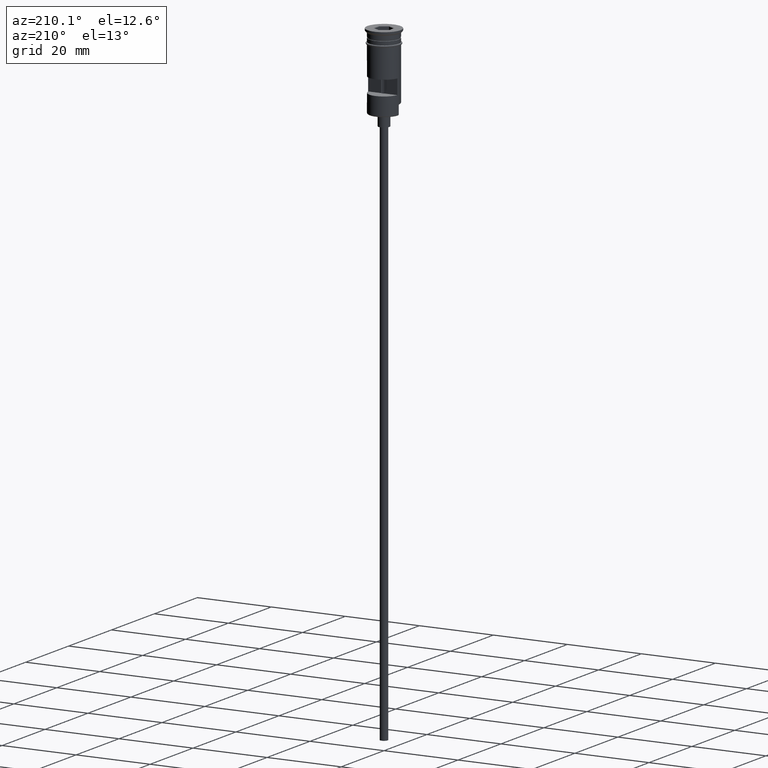
[diagram: clean part render]
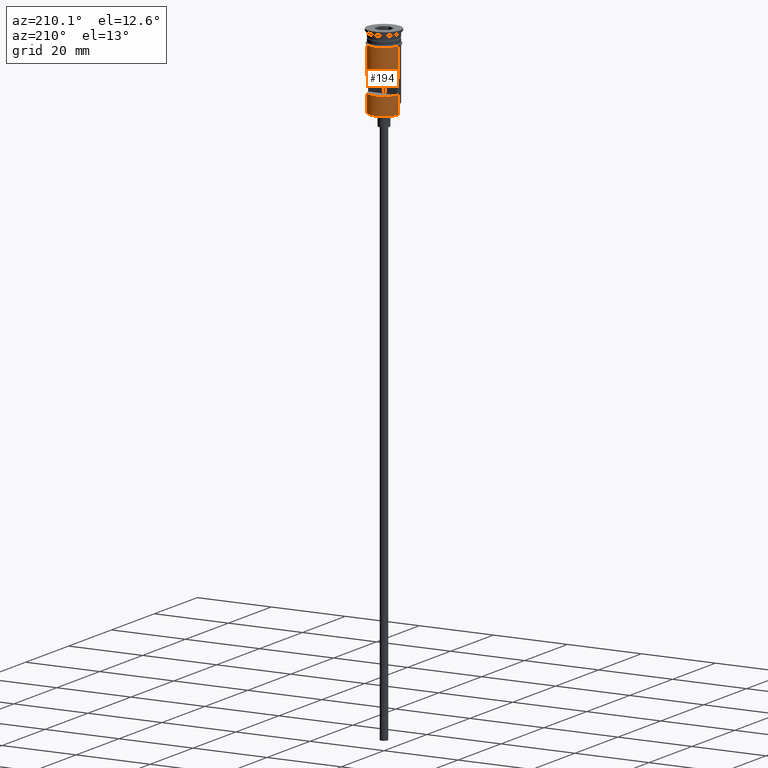
[diagram: same view with one face highlighted and labeled with its STEP entity id]
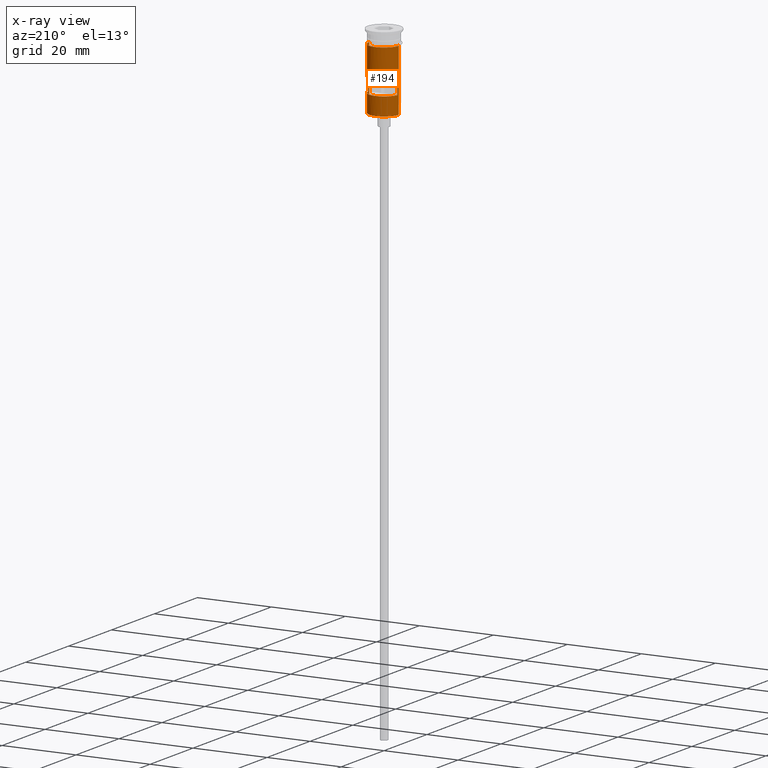
[diagram: x-ray of the same camera — body ghosted, the highlighted face saturated]
A machine part, auxiliary view. The second image highlights one B-rep face of the part: STEP entity #194.
The next image is the same camera in x-ray: the body ghosted, the highlighted face saturated — about 0% of this face is hidden behind the body in this view.
In plain terms, the highlighted cylindrical surface (edge-blend (fillet) strip) has radius 4 mm, axis along (-0, -0, 1).
Its self-contained STEP definition (entity closure, byte-faithful):
#26 = VECTOR ( 'NONE', #1571, 1000.000000000000000 ) ;
#110 = ORIENTED_EDGE ( 'NONE', *, *, #166, .T. ) ;
#134 = VERTEX_POINT ( 'NONE', #1245 ) ;
#153 = VERTEX_POINT ( 'NONE', #1065 ) ;
#160 = AXIS2_PLACEMENT_3D ( 'NONE', #1293, #1274, #1149 ) ;
#166 = EDGE_CURVE ( 'NONE', #1582, #153, #828, .T. ) ;
#184 = VECTOR ( 'NONE', #851, 1000.000000000000000 ) ;
#194 = ADVANCED_FACE ( 'NONE', ( #1537, #1297 ), #985, .T. ) ;
#202 = EDGE_CURVE ( 'NONE', #1319, #134, #675, .T. ) ;
#232 = EDGE_CURVE ( 'NONE', #475, #1029, #291, .T. ) ;
#283 = ORIENTED_EDGE ( 'NONE', *, *, #202, .F. ) ;
#291 = CIRCLE ( 'NONE', #160, 4.000000000000000000 ) ;
#293 = LINE ( 'NONE', #1035, #1498 ) ;
#311 = EDGE_CURVE ( 'NONE', #153, #1029, #673, .T. ) ;
#314 = DIRECTION ( 'NONE',  ( -0.000000000000000000, -0.000000000000000000, 1.000000000000000000 ) ) ;
#326 = EDGE_CURVE ( 'NONE', #134, #475, #293, .T. ) ;
#378 = CARTESIAN_POINT ( 'NONE',  ( -3.954743986657037524, 0.5999999999999996447, -11.50000000000000000 ) ) ;
#395 = VECTOR ( 'NONE', #1156, 1000.000000000000000 ) ;
#405 = DIRECTION ( 'NONE',  ( 1.000000000000000000, 0.000000000000000000, 0.000000000000000000 ) ) ;
#408 = DIRECTION ( 'NONE',  ( 1.000000000000000000, 0.000000000000000000, 0.000000000000000000 ) ) ;
#421 = ORIENTED_EDGE ( 'NONE', *, *, #326, .F. ) ;
#430 = ORIENTED_EDGE ( 'NONE', *, *, #311, .T. ) ;
#475 = VERTEX_POINT ( 'NONE', #607 ) ;
#482 = EDGE_CURVE ( 'NONE', #1319, #1582, #1416, .T. ) ;
#497 = DIRECTION ( 'NONE',  ( -1.000000000000000000, 0.000000000000000000, 0.000000000000000000 ) ) ;
#568 = CARTESIAN_POINT ( 'NONE',  ( -3.999999999999997335, 0.000000000000000000, -20.29999999999997584 ) ) ;
#580 = DIRECTION ( 'NONE',  ( 0.000000000000000000, 0.000000000000000000, 1.000000000000000000 ) ) ;
#607 = CARTESIAN_POINT ( 'NONE',  ( 4.000000000000000000, 0.000000000000000000, -3.799999999999998490 ) ) ;
#612 = CARTESIAN_POINT ( 'NONE',  ( 3.999999999999997335, 4.898587196589409870E-16, -20.49999999999999645 ) ) ;
#616 = AXIS2_PLACEMENT_3D ( 'NONE', #1181, #580, #1330 ) ;
#649 = AXIS2_PLACEMENT_3D ( 'NONE', #1138, #1471, #408 ) ;
#673 = LINE ( 'NONE', #680, #395 ) ;
#675 = LINE ( 'NONE', #612, #184 ) ;
#680 = CARTESIAN_POINT ( 'NONE',  ( -4.000000000000000000, 4.898587196589412829E-16, 0.000000000000000000 ) ) ;
#731 = ORIENTED_EDGE ( 'NONE', *, *, #1006, .F. ) ;
#732 = CARTESIAN_POINT ( 'NONE',  ( 3.954743986657038413, 0.5999999999999996447, -11.50000000000000000 ) ) ;
#766 = AXIS2_PLACEMENT_3D ( 'NONE', #1596, #1375, #497 ) ;
#776 = EDGE_CURVE ( 'NONE', #1369, #1041, #1061, .T. ) ;
#820 = DIRECTION ( 'NONE',  ( -0.000000000000000000, -0.000000000000000000, 1.000000000000000000 ) ) ;
#828 = LINE ( 'NONE', #1320, #26 ) ;
#836 = VERTEX_POINT ( 'NONE', #1457 ) ;
#849 = EDGE_LOOP ( 'NONE', ( #1270, #899, #1238, #731 ) ) ;
#851 = DIRECTION ( 'NONE',  ( -0.000000000000000000, -0.000000000000000000, 1.000000000000000000 ) ) ;
#899 = ORIENTED_EDGE ( 'NONE', *, *, #1400, .F. ) ;
#907 = CARTESIAN_POINT ( 'NONE',  ( 3.954743986657037524, 0.5999999999999996447, 0.000000000000000000 ) ) ;
#920 = VECTOR ( 'NONE', #1160, 1000.000000000000000 ) ;
#950 = CARTESIAN_POINT ( 'NONE',  ( -3.954743986657037524, 0.5999999999999996447, 0.000000000000000000 ) ) ;
#959 = VERTEX_POINT ( 'NONE', #732 ) ;
#985 = CYLINDRICAL_SURFACE ( 'NONE', #649, 4.000000000000000000 ) ;
#1006 = EDGE_CURVE ( 'NONE', #836, #1369, #1068, .T. ) ;
#1029 = VERTEX_POINT ( 'NONE', #1113 ) ;
#1035 = CARTESIAN_POINT ( 'NONE',  ( 4.000000000000000000, 0.000000000000000000, 0.000000000000000000 ) ) ;
#1041 = VERTEX_POINT ( 'NONE', #378 ) ;
#1061 = LINE ( 'NONE', #950, #1090 ) ;
#1065 = CARTESIAN_POINT ( 'NONE',  ( -3.999999999999997335, 0.000000000000000000, -17.79999999999998295 ) ) ;
#1068 = CIRCLE ( 'NONE', #766, 4.000000000000000000 ) ;
#1090 = VECTOR ( 'NONE', #820, 1000.000000000000000 ) ;
#1108 = DIRECTION ( 'NONE',  ( -0.000000000000000000, 0.000000000000000000, -1.000000000000000000 ) ) ;
#1113 = CARTESIAN_POINT ( 'NONE',  ( -4.000000000000000000, 4.898587196589412829E-16, -3.799999999999998490 ) ) ;
#1138 = CARTESIAN_POINT ( 'NONE',  ( 0.000000000000000000, 0.000000000000000000, 0.000000000000000000 ) ) ;
#1147 = CIRCLE ( 'NONE', #1415, 4.000000000000000000 ) ;
#1149 = DIRECTION ( 'NONE',  ( 1.000000000000000000, 0.000000000000000000, 0.000000000000000000 ) ) ;
#1155 = EDGE_CURVE ( 'NONE', #959, #836, #1393, .T. ) ;
#1156 = DIRECTION ( 'NONE',  ( -0.000000000000000000, -0.000000000000000000, 1.000000000000000000 ) ) ;
#1160 = DIRECTION ( 'NONE',  ( 0.000000000000000000, 0.000000000000000000, -1.000000000000000000 ) ) ;
#1181 = CARTESIAN_POINT ( 'NONE',  ( 0.000000000000000000, 0.000000000000000000, -20.29999999999997584 ) ) ;
#1238 = ORIENTED_EDGE ( 'NONE', *, *, #776, .F. ) ;
#1241 = ORIENTED_EDGE ( 'NONE', *, *, #482, .T. ) ;
#1245 = CARTESIAN_POINT ( 'NONE',  ( 4.000000000000000000, 4.898587196589412829E-16, -17.79999999999998295 ) ) ;
#1257 = CARTESIAN_POINT ( 'NONE',  ( 0.000000000000000000, 0.000000000000000000, -11.50000000000000000 ) ) ;
#1270 = ORIENTED_EDGE ( 'NONE', *, *, #1155, .F. ) ;
#1274 = DIRECTION ( 'NONE',  ( -0.000000000000000000, -0.000000000000000000, 1.000000000000000000 ) ) ;
#1293 = CARTESIAN_POINT ( 'NONE',  ( 0.000000000000000000, 0.000000000000000000, -3.799999999999998490 ) ) ;
#1297 = FACE_OUTER_BOUND ( 'NONE', #1312, .T. ) ;
#1312 = EDGE_LOOP ( 'NONE', ( #110, #430, #1413, #421, #283, #1241 ) ) ;
#1319 = VERTEX_POINT ( 'NONE', #1334 ) ;
#1320 = CARTESIAN_POINT ( 'NONE',  ( -3.999999999999997335, 0.000000000000000000, -20.49999999999999645 ) ) ;
#1330 = DIRECTION ( 'NONE',  ( -1.000000000000000000, 0.000000000000000000, 0.000000000000000000 ) ) ;
#1334 = CARTESIAN_POINT ( 'NONE',  ( 3.999999999999997335, 4.898587196589409870E-16, -20.29999999999997584 ) ) ;
#1369 = VERTEX_POINT ( 'NONE', #1483 ) ;
#1375 = DIRECTION ( 'NONE',  ( 0.000000000000000000, 0.000000000000000000, 1.000000000000000000 ) ) ;
#1393 = LINE ( 'NONE', #907, #920 ) ;
#1400 = EDGE_CURVE ( 'NONE', #1041, #959, #1147, .T. ) ;
#1413 = ORIENTED_EDGE ( 'NONE', *, *, #232, .F. ) ;
#1415 = AXIS2_PLACEMENT_3D ( 'NONE', #1257, #1108, #405 ) ;
#1416 = CIRCLE ( 'NONE', #616, 4.000000000000000000 ) ;
#1457 = CARTESIAN_POINT ( 'NONE',  ( 3.954743986657038413, 0.5999999999999996447, -15.50000000000000000 ) ) ;
#1471 = DIRECTION ( 'NONE',  ( -0.000000000000000000, -0.000000000000000000, 1.000000000000000000 ) ) ;
#1483 = CARTESIAN_POINT ( 'NONE',  ( -3.954743986657037524, 0.5999999999999996447, -15.50000000000000000 ) ) ;
#1498 = VECTOR ( 'NONE', #314, 1000.000000000000000 ) ;
#1537 = FACE_BOUND ( 'NONE', #849, .T. ) ;
#1571 = DIRECTION ( 'NONE',  ( -0.000000000000000000, -0.000000000000000000, 1.000000000000000000 ) ) ;
#1582 = VERTEX_POINT ( 'NONE', #568 ) ;
#1596 = CARTESIAN_POINT ( 'NONE',  ( 0.000000000000000000, 0.000000000000000000, -15.50000000000000000 ) ) ;